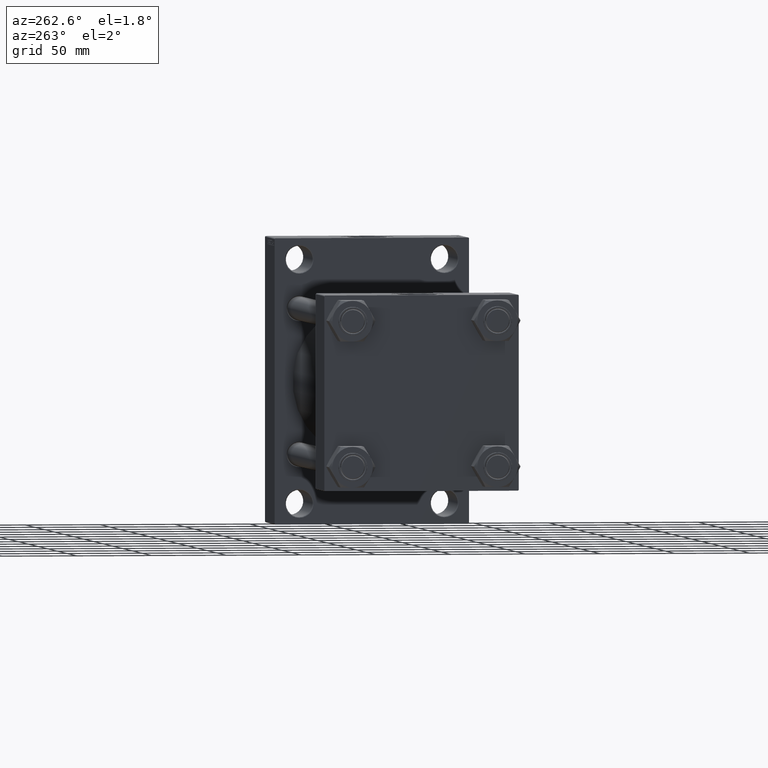
[diagram: clean part render]
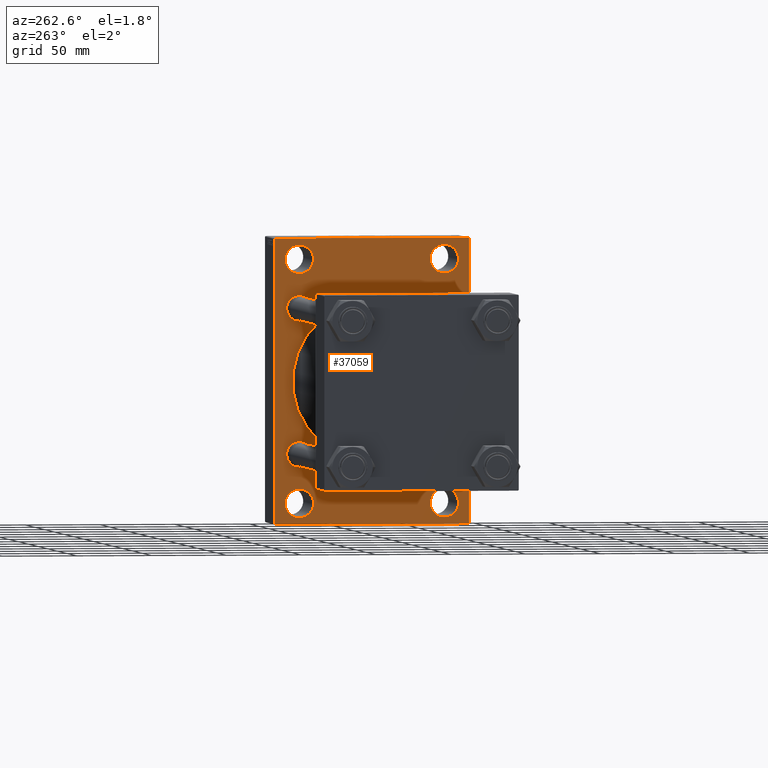
[diagram: same view with one face highlighted and labeled with its STEP entity id]
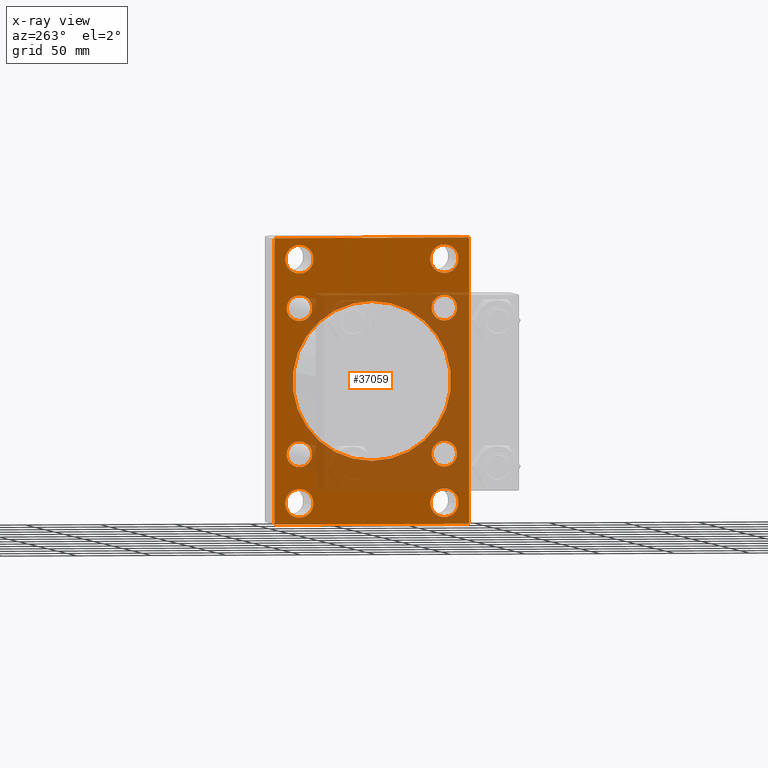
[diagram: x-ray of the same camera — body ghosted, the highlighted face saturated]
A machine part, auxiliary view. The second image highlights one B-rep face of the part: STEP entity #37059.
The next image is the same camera in x-ray: the body ghosted, the highlighted face saturated — about 37% of this face is hidden behind the body in this view.
In plain terms, the highlighted planar face has unit normal (-1, 0, 0).
Its self-contained STEP definition (entity closure, byte-faithful):
#331 = CARTESIAN_POINT ( 'NONE',  ( 256.0000000000000000, 3.888542821515762466E-15, -53.00000000000000711 ) ) ;
#589 = DIRECTION ( 'NONE',  ( 1.000000000000000000, -0.000000000000000000, 0.000000000000000000 ) ) ;
#1071 = ORIENTED_EDGE ( 'NONE', *, *, #42301, .T. ) ;
#1126 = ORIENTED_EDGE ( 'NONE', *, *, #35838, .T. ) ;
#1222 = AXIS2_PLACEMENT_3D ( 'NONE', #23150, #19463, #27302 ) ;
#1616 = ORIENTED_EDGE ( 'NONE', *, *, #10826, .T. ) ;
#1881 = EDGE_CURVE ( 'NONE', #39927, #35153, #15269, .T. ) ;
#2049 = DIRECTION ( 'NONE',  ( 1.000000000000000000, -0.000000000000000000, 0.000000000000000000 ) ) ;
#2240 = AXIS2_PLACEMENT_3D ( 'NONE', #20035, #30797, #31045 ) ;
#2310 = EDGE_CURVE ( 'NONE', #40781, #31962, #5168, .T. ) ;
#2445 = CARTESIAN_POINT ( 'NONE',  ( 256.0000000000000000, -48.49999999999999289, -90.50000000000008527 ) ) ;
#2528 = CARTESIAN_POINT ( 'NONE',  ( 256.0000000000000000, 48.50000000000000711, -81.00000000000001421 ) ) ;
#3197 = ORIENTED_EDGE ( 'NONE', *, *, #18575, .T. ) ;
#3391 = LINE ( 'NONE', #32484, #42480 ) ;
#3440 = CARTESIAN_POINT ( 'NONE',  ( 256.0000000000000000, 48.45000000000000995, -56.95000000000002416 ) ) ;
#3597 = CARTESIAN_POINT ( 'NONE',  ( 256.0000000000000000, 48.45000000000000995, 39.95000000000000284 ) ) ;
#3632 = DIRECTION ( 'NONE',  ( 0.000000000000000000, 0.7071067811865868746, -0.7071067811865081598 ) ) ;
#3729 = CARTESIAN_POINT ( 'NONE',  ( 256.0000000000000000, -48.50000000000000000, 81.00000000000000000 ) ) ;
#3888 = CARTESIAN_POINT ( 'NONE',  ( 256.0000000000000000, -48.49999999999999289, -71.49999999999995737 ) ) ;
#4145 = EDGE_LOOP ( 'NONE', ( #1126, #35385 ) ) ;
#4147 = DIRECTION ( 'NONE',  ( 1.000000000000000000, -0.000000000000000000, 0.000000000000000000 ) ) ;
#4222 = CIRCLE ( 'NONE', #10465, 8.500000000000007105 ) ;
#4326 = CARTESIAN_POINT ( 'NONE',  ( 256.0000000000000000, 48.50000000000000711, -71.49999999999995737 ) ) ;
#4507 = CARTESIAN_POINT ( 'NONE',  ( 256.0000000000000000, 64.99999999999997158, 94.50000000000002842 ) ) ;
#4775 = ORIENTED_EDGE ( 'NONE', *, *, #39802, .T. ) ;
#5082 = VERTEX_POINT ( 'NONE', #30931 ) ;
#5168 = CIRCLE ( 'NONE', #11398, 9.500000000000063949 ) ;
#5260 = EDGE_LOOP ( 'NONE', ( #13043, #43271 ) ) ;
#5563 = FACE_BOUND ( 'NONE', #45388, .T. ) ;
#5696 = DIRECTION ( 'NONE',  ( 0.000000000000000000, 0.000000000000000000, -1.000000000000000000 ) ) ;
#5969 = CIRCLE ( 'NONE', #28572, 9.500000000000063949 ) ;
#6011 = DIRECTION ( 'NONE',  ( 0.000000000000000000, 0.000000000000000000, 1.000000000000000000 ) ) ;
#6186 = CARTESIAN_POINT ( 'NONE',  ( 256.0000000000000000, -65.00000000000001421, 94.99999999999997158 ) ) ;
#6535 = FACE_BOUND ( 'NONE', #5260, .T. ) ;
#7029 = CARTESIAN_POINT ( 'NONE',  ( 256.0000000000000000, -64.50000000000008527, 94.99999999999997158 ) ) ;
#7574 = EDGE_LOOP ( 'NONE', ( #9188, #45272 ) ) ;
#7882 = EDGE_CURVE ( 'NONE', #20726, #29192, #12798, .T. ) ;
#8393 = VERTEX_POINT ( 'NONE', #32970 ) ;
#8768 = DIRECTION ( 'NONE',  ( 0.000000000000000000, 0.000000000000000000, 1.000000000000000000 ) ) ;
#8810 = CARTESIAN_POINT ( 'NONE',  ( 256.0000000000000000, -65.00000000000001421, 94.49999999999997158 ) ) ;
#9053 = EDGE_CURVE ( 'NONE', #31962, #40781, #30599, .T. ) ;
#9188 = ORIENTED_EDGE ( 'NONE', *, *, #38828, .T. ) ;
#9194 = LINE ( 'NONE', #39000, #39239 ) ;
#9394 = DIRECTION ( 'NONE',  ( 1.000000000000000000, 0.000000000000000000, 0.000000000000000000 ) ) ;
#9704 = FACE_BOUND ( 'NONE', #43621, .T. ) ;
#9727 = VERTEX_POINT ( 'NONE', #4507 ) ;
#10190 = FACE_BOUND ( 'NONE', #34474, .T. ) ;
#10465 = AXIS2_PLACEMENT_3D ( 'NONE', #44361, #47290, #39714 ) ;
#10526 = DIRECTION ( 'NONE',  ( 0.000000000000000000, 0.000000000000000000, 1.000000000000000000 ) ) ;
#10826 = EDGE_CURVE ( 'NONE', #29896, #36128, #9194, .T. ) ;
#11220 = VERTEX_POINT ( 'NONE', #12451 ) ;
#11222 = DIRECTION ( 'NONE',  ( 1.000000000000000000, -0.000000000000000000, 0.000000000000000000 ) ) ;
#11230 = CIRCLE ( 'NONE', #13570, 9.500000000000063949 ) ;
#11268 = CIRCLE ( 'NONE', #12812, 53.00000000000000711 ) ;
#11319 = CIRCLE ( 'NONE', #12879, 8.500000000000007105 ) ;
#11377 = ORIENTED_EDGE ( 'NONE', *, *, #7882, .F. ) ;
#11398 = AXIS2_PLACEMENT_3D ( 'NONE', #2528, #36719, #16946 ) ;
#12379 = CARTESIAN_POINT ( 'NONE',  ( 256.0000000000000000, -79.74999999999643308, -79.75000000000530065 ) ) ;
#12407 = CARTESIAN_POINT ( 'NONE',  ( 256.0000000000000000, -48.44999999999999574, -39.95000000000001705 ) ) ;
#12451 = CARTESIAN_POINT ( 'NONE',  ( 256.0000000000000000, -48.44999999999999574, 39.95000000000001705 ) ) ;
#12755 = DIRECTION ( 'NONE',  ( 1.000000000000000000, -0.000000000000000000, 0.000000000000000000 ) ) ;
#12798 = LINE ( 'NONE', #6186, #16533 ) ;
#12801 = CARTESIAN_POINT ( 'NONE',  ( 256.0000000000000000, 48.50000000000000711, 81.00000000000000000 ) ) ;
#12812 = AXIS2_PLACEMENT_3D ( 'NONE', #27985, #9394, #27755 ) ;
#12879 = AXIS2_PLACEMENT_3D ( 'NONE', #14994, #22093, #41381 ) ;
#13043 = ORIENTED_EDGE ( 'NONE', *, *, #42086, .T. ) ;
#13108 = ORIENTED_EDGE ( 'NONE', *, *, #21455, .T. ) ;
#13211 = LINE ( 'NONE', #32263, #18455 ) ;
#13389 = DIRECTION ( 'NONE',  ( 0.000000000000000000, 7.304098846218135653E-17, -1.000000000000000000 ) ) ;
#13570 = AXIS2_PLACEMENT_3D ( 'NONE', #12801, #2049, #23564 ) ;
#14051 = EDGE_CURVE ( 'NONE', #31060, #9727, #36850, .T. ) ;
#14370 = ORIENTED_EDGE ( 'NONE', *, *, #1881, .T. ) ;
#14434 = EDGE_LOOP ( 'NONE', ( #25468, #13108 ) ) ;
#14494 = CIRCLE ( 'NONE', #41787, 9.500000000000063949 ) ;
#14888 = DIRECTION ( 'NONE',  ( 0.000000000000000000, 0.000000000000000000, 1.000000000000000000 ) ) ;
#14994 = CARTESIAN_POINT ( 'NONE',  ( 256.0000000000000000, 48.45000000000000995, 48.45000000000001705 ) ) ;
#15269 = CIRCLE ( 'NONE', #42582, 8.500000000000007105 ) ;
#15491 = EDGE_CURVE ( 'NONE', #16425, #22946, #11319, .T. ) ;
#15535 = VERTEX_POINT ( 'NONE', #331 ) ;
#15550 = LINE ( 'NONE', #12379, #46574 ) ;
#15559 = CARTESIAN_POINT ( 'NONE',  ( 256.0000000000000000, -2.602085213965210642E-15, 53.00000000000000711 ) ) ;
#16425 = VERTEX_POINT ( 'NONE', #3597 ) ;
#16533 = VECTOR ( 'NONE', #5696, 1000.000000000000000 ) ;
#16562 = CARTESIAN_POINT ( 'NONE',  ( 256.0000000000000000, -48.49999999999999289, -81.00000000000001421 ) ) ;
#16757 = EDGE_CURVE ( 'NONE', #20827, #20887, #14494, .T. ) ;
#16758 = CARTESIAN_POINT ( 'NONE',  ( 256.0000000000000000, 48.45000000000000995, -48.45000000000001705 ) ) ;
#16900 = CARTESIAN_POINT ( 'NONE',  ( 256.0000000000000000, 79.74999999999637623, 79.75000000000524381 ) ) ;
#16911 = AXIS2_PLACEMENT_3D ( 'NONE', #17648, #46740, #21562 ) ;
#16919 = EDGE_LOOP ( 'NONE', ( #20125, #40000 ) ) ;
#16946 = DIRECTION ( 'NONE',  ( 0.000000000000000000, 0.000000000000000000, 1.000000000000000000 ) ) ;
#16982 = AXIS2_PLACEMENT_3D ( 'NONE', #16758, #39482, #6011 ) ;
#17041 = FACE_BOUND ( 'NONE', #7574, .T. ) ;
#17280 = DIRECTION ( 'NONE',  ( -1.000000000000000000, 0.000000000000000000, -0.000000000000000000 ) ) ;
#17648 = CARTESIAN_POINT ( 'NONE',  ( 256.0000000000000000, 48.50000000000000711, 81.00000000000000000 ) ) ;
#17853 = DIRECTION ( 'NONE',  ( 0.000000000000000000, -1.000000000000000000, 0.000000000000000000 ) ) ;
#17957 = ORIENTED_EDGE ( 'NONE', *, *, #14051, .T. ) ;
#17980 = EDGE_CURVE ( 'NONE', #35153, #39927, #40262, .T. ) ;
#18455 = VECTOR ( 'NONE', #35922, 1000.000000000000000 ) ;
#18575 = EDGE_CURVE ( 'NONE', #22946, #16425, #33289, .T. ) ;
#18878 = VERTEX_POINT ( 'NONE', #37503 ) ;
#18931 = CIRCLE ( 'NONE', #46251, 9.500000000000063949 ) ;
#19370 = CARTESIAN_POINT ( 'NONE',  ( 256.0000000000000000, 48.50000000000000711, 90.50000000000007105 ) ) ;
#19405 = EDGE_CURVE ( 'NONE', #36128, #29192, #15550, .T. ) ;
#19463 = DIRECTION ( 'NONE',  ( 1.000000000000000000, 0.000000000000000000, 0.000000000000000000 ) ) ;
#19500 = DIRECTION ( 'NONE',  ( 1.000000000000000000, -0.000000000000000000, 0.000000000000000000 ) ) ;
#19963 = DIRECTION ( 'NONE',  ( 0.000000000000000000, 0.000000000000000000, 1.000000000000000000 ) ) ;
#20035 = CARTESIAN_POINT ( 'NONE',  ( 256.0000000000000000, -48.50000000000000000, 81.00000000000000000 ) ) ;
#20125 = ORIENTED_EDGE ( 'NONE', *, *, #9053, .T. ) ;
#20326 = CIRCLE ( 'NONE', #26585, 8.500000000000007105 ) ;
#20419 = DIRECTION ( 'NONE',  ( 0.000000000000000000, -1.000000000000000000, -1.067522139062650425E-16 ) ) ;
#20726 = VERTEX_POINT ( 'NONE', #8810 ) ;
#20827 = VERTEX_POINT ( 'NONE', #2445 ) ;
#20887 = VERTEX_POINT ( 'NONE', #3888 ) ;
#21186 = FACE_OUTER_BOUND ( 'NONE', #21200, .T. ) ;
#21200 = EDGE_LOOP ( 'NONE', ( #1616, #36092, #11377, #4775, #30623, #17957, #43611, #48327 ) ) ;
#21356 = CARTESIAN_POINT ( 'NONE',  ( 256.0000000000000000, -64.50000000000001421, -95.00000000000002842 ) ) ;
#21455 = EDGE_CURVE ( 'NONE', #8393, #5082, #5969, .T. ) ;
#21562 = DIRECTION ( 'NONE',  ( 0.000000000000000000, 0.000000000000000000, 1.000000000000000000 ) ) ;
#21749 = EDGE_CURVE ( 'NONE', #40718, #29896, #13211, .T. ) ;
#21771 = CARTESIAN_POINT ( 'NONE',  ( 256.0000000000000000, -48.44999999999999574, 48.45000000000003126 ) ) ;
#22046 = EDGE_CURVE ( 'NONE', #9727, #40718, #43196, .T. ) ;
#22093 = DIRECTION ( 'NONE',  ( 1.000000000000000000, -0.000000000000000000, 0.000000000000000000 ) ) ;
#22210 = CARTESIAN_POINT ( 'NONE',  ( 256.0000000000000000, 48.50000000000000711, -90.50000000000008527 ) ) ;
#22946 = VERTEX_POINT ( 'NONE', #42110 ) ;
#23076 = EDGE_CURVE ( 'NONE', #26380, #39548, #43424, .T. ) ;
#23150 = CARTESIAN_POINT ( 'NONE',  ( 256.0000000000000000, -2.602085213965210642E-15, 0.000000000000000000 ) ) ;
#23325 = CARTESIAN_POINT ( 'NONE',  ( 256.0000000000000000, -48.49999999999999289, -81.00000000000001421 ) ) ;
#23564 = DIRECTION ( 'NONE',  ( 0.000000000000000000, 0.000000000000000000, 1.000000000000000000 ) ) ;
#24148 = ORIENTED_EDGE ( 'NONE', *, *, #15491, .T. ) ;
#24471 = CARTESIAN_POINT ( 'NONE',  ( 256.0000000000000000, -48.44999999999999574, -48.45000000000003126 ) ) ;
#24550 = CIRCLE ( 'NONE', #46385, 8.500000000000007105 ) ;
#24624 = CARTESIAN_POINT ( 'NONE',  ( 256.0000000000000000, 0.000000000000000000, 0.000000000000000000 ) ) ;
#24743 = VERTEX_POINT ( 'NONE', #15559 ) ;
#24860 = EDGE_CURVE ( 'NONE', #29913, #18878, #46636, .T. ) ;
#25296 = CARTESIAN_POINT ( 'NONE',  ( 256.0000000000000000, -48.44999999999999574, -56.95000000000003837 ) ) ;
#25468 = ORIENTED_EDGE ( 'NONE', *, *, #26629, .T. ) ;
#25786 = ORIENTED_EDGE ( 'NONE', *, *, #17980, .T. ) ;
#26380 = VERTEX_POINT ( 'NONE', #19370 ) ;
#26585 = AXIS2_PLACEMENT_3D ( 'NONE', #47888, #11222, #14888 ) ;
#26629 = EDGE_CURVE ( 'NONE', #5082, #8393, #47480, .T. ) ;
#27302 = DIRECTION ( 'NONE',  ( 0.000000000000000000, 0.000000000000000000, -1.000000000000000000 ) ) ;
#27502 = AXIS2_PLACEMENT_3D ( 'NONE', #34055, #589, #37964 ) ;
#27539 = EDGE_LOOP ( 'NONE', ( #45795, #41353 ) ) ;
#27545 = CARTESIAN_POINT ( 'NONE',  ( 256.0000000000000000, 48.45000000000000995, 48.45000000000001705 ) ) ;
#27755 = DIRECTION ( 'NONE',  ( 0.000000000000000000, 0.000000000000000000, -1.000000000000000000 ) ) ;
#27902 = DIRECTION ( 'NONE',  ( 0.000000000000000000, 0.000000000000000000, 1.000000000000000000 ) ) ;
#27985 = CARTESIAN_POINT ( 'NONE',  ( 256.0000000000000000, -2.602085213965210642E-15, 0.000000000000000000 ) ) ;
#28064 = CARTESIAN_POINT ( 'NONE',  ( 256.0000000000000000, -65.00000000000001421, -94.50000000000008527 ) ) ;
#28572 = AXIS2_PLACEMENT_3D ( 'NONE', #3729, #40617, #45251 ) ;
#29023 = CARTESIAN_POINT ( 'NONE',  ( 256.0000000000000000, 64.99999999999997158, 94.99999999999997158 ) ) ;
#29192 = VERTEX_POINT ( 'NONE', #28064 ) ;
#29896 = VERTEX_POINT ( 'NONE', #43523 ) ;
#29913 = VERTEX_POINT ( 'NONE', #3440 ) ;
#29958 = VECTOR ( 'NONE', #17853, 1000.000000000000000 ) ;
#30179 = ORIENTED_EDGE ( 'NONE', *, *, #23076, .T. ) ;
#30599 = CIRCLE ( 'NONE', #27502, 9.500000000000063949 ) ;
#30623 = ORIENTED_EDGE ( 'NONE', *, *, #38427, .F. ) ;
#30717 = EDGE_CURVE ( 'NONE', #11220, #36737, #20326, .T. ) ;
#30797 = DIRECTION ( 'NONE',  ( 1.000000000000000000, -0.000000000000000000, 0.000000000000000000 ) ) ;
#30931 = CARTESIAN_POINT ( 'NONE',  ( 256.0000000000000000, -48.50000000000000000, 90.50000000000007105 ) ) ;
#31004 = DIRECTION ( 'NONE',  ( 0.000000000000000000, 0.000000000000000000, 1.000000000000000000 ) ) ;
#31045 = DIRECTION ( 'NONE',  ( 0.000000000000000000, 0.000000000000000000, 1.000000000000000000 ) ) ;
#31060 = VERTEX_POINT ( 'NONE', #37062 ) ;
#31962 = VERTEX_POINT ( 'NONE', #4326 ) ;
#32263 = CARTESIAN_POINT ( 'NONE',  ( 256.0000000000000000, 79.74999999999913314, -79.75000000000132161 ) ) ;
#32441 = FACE_BOUND ( 'NONE', #16919, .T. ) ;
#32484 = CARTESIAN_POINT ( 'NONE',  ( 256.0000000000000000, -79.75000000000450484, 79.74999999999343459 ) ) ;
#32529 = AXIS2_PLACEMENT_3D ( 'NONE', #27545, #38774, #19963 ) ;
#32970 = CARTESIAN_POINT ( 'NONE',  ( 256.0000000000000000, -48.50000000000000000, 71.49999999999994316 ) ) ;
#33289 = CIRCLE ( 'NONE', #32529, 8.500000000000007105 ) ;
#33793 = AXIS2_PLACEMENT_3D ( 'NONE', #24624, #17280, #44586 ) ;
#34055 = CARTESIAN_POINT ( 'NONE',  ( 256.0000000000000000, 48.50000000000000711, -81.00000000000001421 ) ) ;
#34117 = DIRECTION ( 'NONE',  ( 0.000000000000000000, -0.7071067811865868746, 0.7071067811865081598 ) ) ;
#34474 = EDGE_LOOP ( 'NONE', ( #30179, #1071 ) ) ;
#35153 = VERTEX_POINT ( 'NONE', #25296 ) ;
#35363 = PLANE ( 'NONE',  #33793 ) ;
#35385 = ORIENTED_EDGE ( 'NONE', *, *, #16757, .T. ) ;
#35581 = AXIS2_PLACEMENT_3D ( 'NONE', #24471, #12755, #27902 ) ;
#35614 = FACE_BOUND ( 'NONE', #4145, .T. ) ;
#35838 = EDGE_CURVE ( 'NONE', #20887, #20827, #18931, .T. ) ;
#35922 = DIRECTION ( 'NONE',  ( -0.000000000000000000, -0.7071067811865573427, -0.7071067811865378028 ) ) ;
#36092 = ORIENTED_EDGE ( 'NONE', *, *, #19405, .T. ) ;
#36128 = VERTEX_POINT ( 'NONE', #21356 ) ;
#36719 = DIRECTION ( 'NONE',  ( 1.000000000000000000, -0.000000000000000000, 0.000000000000000000 ) ) ;
#36737 = VERTEX_POINT ( 'NONE', #47642 ) ;
#36850 = LINE ( 'NONE', #16900, #44844 ) ;
#37059 = ADVANCED_FACE ( 'NONE', ( #39761, #35614, #32441, #10190, #42941, #9704, #6535, #5563, #17041, #21186 ), #35363, .T. ) ;
#37062 = CARTESIAN_POINT ( 'NONE',  ( 256.0000000000000000, 64.49999999999997158, 94.99999999999997158 ) ) ;
#37503 = CARTESIAN_POINT ( 'NONE',  ( 256.0000000000000000, 48.45000000000000995, -39.95000000000000284 ) ) ;
#37825 = VERTEX_POINT ( 'NONE', #7029 ) ;
#37964 = DIRECTION ( 'NONE',  ( 0.000000000000000000, 0.000000000000000000, 1.000000000000000000 ) ) ;
#38427 = EDGE_CURVE ( 'NONE', #31060, #37825, #40335, .T. ) ;
#38700 = DIRECTION ( 'NONE',  ( 0.000000000000000000, 0.000000000000000000, 1.000000000000000000 ) ) ;
#38774 = DIRECTION ( 'NONE',  ( 1.000000000000000000, -0.000000000000000000, 0.000000000000000000 ) ) ;
#38828 = EDGE_CURVE ( 'NONE', #24743, #15535, #11268, .T. ) ;
#38850 = CARTESIAN_POINT ( 'NONE',  ( 256.0000000000000000, 64.99999999999998579, -94.50000000000002842 ) ) ;
#39000 = CARTESIAN_POINT ( 'NONE',  ( 256.0000000000000000, 64.99999999999998579, -95.00000000000001421 ) ) ;
#39239 = VECTOR ( 'NONE', #20419, 1000.000000000000000 ) ;
#39482 = DIRECTION ( 'NONE',  ( 1.000000000000000000, -0.000000000000000000, 0.000000000000000000 ) ) ;
#39548 = VERTEX_POINT ( 'NONE', #44746 ) ;
#39714 = DIRECTION ( 'NONE',  ( 0.000000000000000000, 0.000000000000000000, 1.000000000000000000 ) ) ;
#39761 = FACE_BOUND ( 'NONE', #14434, .T. ) ;
#39802 = EDGE_CURVE ( 'NONE', #20726, #37825, #3391, .T. ) ;
#39927 = VERTEX_POINT ( 'NONE', #12407 ) ;
#40000 = ORIENTED_EDGE ( 'NONE', *, *, #2310, .T. ) ;
#40262 = CIRCLE ( 'NONE', #35581, 8.500000000000007105 ) ;
#40292 = VECTOR ( 'NONE', #13389, 1000.000000000000000 ) ;
#40335 = LINE ( 'NONE', #43519, #29958 ) ;
#40617 = DIRECTION ( 'NONE',  ( 1.000000000000000000, -0.000000000000000000, 0.000000000000000000 ) ) ;
#40718 = VERTEX_POINT ( 'NONE', #38850 ) ;
#40781 = VERTEX_POINT ( 'NONE', #22210 ) ;
#41353 = ORIENTED_EDGE ( 'NONE', *, *, #30717, .T. ) ;
#41381 = DIRECTION ( 'NONE',  ( 0.000000000000000000, 0.000000000000000000, 1.000000000000000000 ) ) ;
#41787 = AXIS2_PLACEMENT_3D ( 'NONE', #23325, #42366, #38700 ) ;
#42086 = EDGE_CURVE ( 'NONE', #18878, #29913, #4222, .T. ) ;
#42110 = CARTESIAN_POINT ( 'NONE',  ( 256.0000000000000000, 48.45000000000000995, 56.95000000000002416 ) ) ;
#42241 = CARTESIAN_POINT ( 'NONE',  ( 256.0000000000000000, -48.44999999999999574, -48.45000000000003126 ) ) ;
#42301 = EDGE_CURVE ( 'NONE', #39548, #26380, #11230, .T. ) ;
#42366 = DIRECTION ( 'NONE',  ( 1.000000000000000000, -0.000000000000000000, 0.000000000000000000 ) ) ;
#42480 = VECTOR ( 'NONE', #47386, 1000.000000000000114 ) ;
#42582 = AXIS2_PLACEMENT_3D ( 'NONE', #42241, #4147, #8768 ) ;
#42941 = FACE_BOUND ( 'NONE', #27539, .T. ) ;
#43196 = LINE ( 'NONE', #29023, #40292 ) ;
#43271 = ORIENTED_EDGE ( 'NONE', *, *, #24860, .T. ) ;
#43276 = EDGE_CURVE ( 'NONE', #36737, #11220, #24550, .T. ) ;
#43424 = CIRCLE ( 'NONE', #16911, 9.500000000000063949 ) ;
#43519 = CARTESIAN_POINT ( 'NONE',  ( 256.0000000000000000, 64.99999999999997158, 94.99999999999997158 ) ) ;
#43523 = CARTESIAN_POINT ( 'NONE',  ( 256.0000000000000000, 64.49999999999998579, -95.00000000000001421 ) ) ;
#43611 = ORIENTED_EDGE ( 'NONE', *, *, #22046, .T. ) ;
#43621 = EDGE_LOOP ( 'NONE', ( #3197, #24148 ) ) ;
#44132 = CIRCLE ( 'NONE', #1222, 53.00000000000000711 ) ;
#44361 = CARTESIAN_POINT ( 'NONE',  ( 256.0000000000000000, 48.45000000000000995, -48.45000000000001705 ) ) ;
#44586 = DIRECTION ( 'NONE',  ( -0.000000000000000000, 0.000000000000000000, 1.000000000000000000 ) ) ;
#44746 = CARTESIAN_POINT ( 'NONE',  ( 256.0000000000000000, 48.50000000000000711, 71.49999999999994316 ) ) ;
#44844 = VECTOR ( 'NONE', #3632, 1000.000000000000000 ) ;
#45251 = DIRECTION ( 'NONE',  ( 0.000000000000000000, 0.000000000000000000, 1.000000000000000000 ) ) ;
#45272 = ORIENTED_EDGE ( 'NONE', *, *, #45382, .T. ) ;
#45382 = EDGE_CURVE ( 'NONE', #15535, #24743, #44132, .T. ) ;
#45388 = EDGE_LOOP ( 'NONE', ( #14370, #25786 ) ) ;
#45795 = ORIENTED_EDGE ( 'NONE', *, *, #43276, .T. ) ;
#46251 = AXIS2_PLACEMENT_3D ( 'NONE', #16562, #19500, #31004 ) ;
#46385 = AXIS2_PLACEMENT_3D ( 'NONE', #21771, #47668, #10526 ) ;
#46574 = VECTOR ( 'NONE', #34117, 1000.000000000000000 ) ;
#46636 = CIRCLE ( 'NONE', #16982, 8.500000000000007105 ) ;
#46740 = DIRECTION ( 'NONE',  ( 1.000000000000000000, -0.000000000000000000, 0.000000000000000000 ) ) ;
#47290 = DIRECTION ( 'NONE',  ( 1.000000000000000000, -0.000000000000000000, 0.000000000000000000 ) ) ;
#47386 = DIRECTION ( 'NONE',  ( -0.000000000000000000, 0.7071067811864985009, 0.7071067811865965336 ) ) ;
#47480 = CIRCLE ( 'NONE', #2240, 9.500000000000063949 ) ;
#47642 = CARTESIAN_POINT ( 'NONE',  ( 256.0000000000000000, -48.44999999999999574, 56.95000000000003837 ) ) ;
#47668 = DIRECTION ( 'NONE',  ( 1.000000000000000000, -0.000000000000000000, 0.000000000000000000 ) ) ;
#47888 = CARTESIAN_POINT ( 'NONE',  ( 256.0000000000000000, -48.44999999999999574, 48.45000000000003126 ) ) ;
#48327 = ORIENTED_EDGE ( 'NONE', *, *, #21749, .T. ) ;